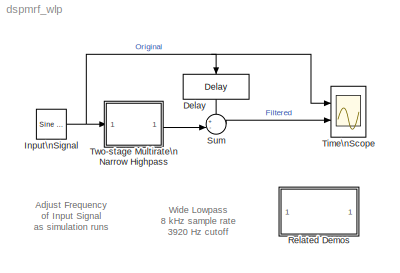
MODEL dspmrf_wlp
KIND model
CONFIG AbsTol = 1e-6
CONFIG FixedStep = auto
CONFIG MaxStep = auto
CONFIG MinStep = auto
CONFIG PreLoadFcn = load dspmrf_coeffs
CONFIG RelTol = 1e-3
CONFIG Solver = FixedStepDiscrete
CONFIG SolverMode = SingleTasking
CONFIG StartTime = 0.0
CONFIG StopTime = inf
BLOCK [Reference] Delay  REF=dspsigops/Delay
  Ports = [1, 1]
  SourceBlock = dspsigops/Delay
  SourceType = Delay
  delay = 6096
  dif_ic_for_ch = off
  dif_ic_for_dly = off
  dly_unit = Samples
  ic = 0
  ic_detail = on
  reset_popup = None
BLOCK [Reference] Input\nSignal  REF=dspsrcs4/Sine Wave
  Amplitude = 1
  CompMethod = Trigonometric fcn
  Frequency = 4000-80
  OutComplex = Real
  Phase = 0
  Ports = [0, 1]
  ResetState = Restart at time zero
  SampleMode = Discrete
  SampleTime = 1/8000
  SamplesPerFrame = 1
  SourceBlock = dspsrcs4/Sine Wave
  SourceType = Sine Wave
  TableSize = Speed
  additionalParams = off
  allowOverrides = on
  dataType = double
  fracBitsMode = Best precision
  numFracBits = 14
  udDataType = sfix(16)
  wordLen = 16
BLOCK [SubSystem] Related Demos
  MaskDisplay = disp('Other\\nMultirate Filter\\nDemos')
  MaskIconFrame = on
  MaskIconOpaque = on
  MaskIconRotate = none
  MaskIconUnits = autoscale
  OpenFcn = dspmrf_menu
  Ports = []
  TreatAsAtomicUnit = off
BLOCK [Sum] Sum
  IconShape = round
  Inputs = +-|
  Ports = [2, 1]
BLOCK [Scope] Time\nScope
  DataFormat = Structure
  NumInputPorts = 2
  Ports = [2]
  TimeRange = 1.5
  YMax = 2~1.5
  YMin = -2~-1.5
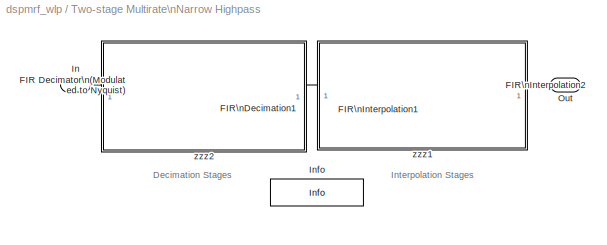
BLOCK [SubSystem] Two-stage Multirate\nNarrow Highpass
  Ports = [1, 1]
  TreatAsAtomicUnit = off
BLOCK [Reference] Two-stage Multirate\nNarrow Highpass/FIR Decimator\n(Modulated to Nyquist)  REF=dspmlti3/FIR\nDecimation
  D = 12
  Ports = [1, 1]
  SourceBlock = dspmlti3/FIR\nDecimation
  SourceType = FIR Decimation
  framing = Maintain input frame size
  h = mrf_firdn1 .* ((-1).^(0:684))
  outputBufInitCond = 0
BLOCK [Reference] Two-stage Multirate\nNarrow Highpass/FIR\nDecimation1  REF=dspmlti3/FIR\nDecimation
  D = 4
  Ports = [1, 1]
  SourceBlock = dspmlti3/FIR\nDecimation
  SourceType = FIR Decimation
  framing = Maintain input frame size
  h = mrf_firdn2
  outputBufInitCond = 0
BLOCK [Reference] Two-stage Multirate\nNarrow Highpass/FIR\nInterpolation1  REF=dspmlti3/FIR\nInterpolation
  L = 4
  Ports = [1, 1]
  SourceBlock = dspmlti3/FIR\nInterpolation
  SourceType = FIR Interpolation
  framing = Maintain input frame size
  h = mrf_upfir2
  outputBufInitCond = 0
BLOCK [Reference] Two-stage Multirate\nNarrow Highpass/FIR\nInterpolation2  REF=dspmlti3/FIR\nInterpolation
  L = 12
  Ports = [1, 1]
  SourceBlock = dspmlti3/FIR\nInterpolation
  SourceType = FIR Interpolation
  framing = Maintain input frame size
  h = mrf_upfir1 .* ((-1).^(0:684))
  outputBufInitCond = 0
BLOCK [Inport] Two-stage Multirate\nNarrow Highpass/In
BLOCK [Reference] Two-stage Multirate\nNarrow Highpass/Info  REF=dspmrf_lib/Info
  Ports = []
  SourceBlock = dspmrf_lib/Info
  SourceType = Unknown
BLOCK [Outport] Two-stage Multirate\nNarrow Highpass/Out
BLOCK [SubSystem] Two-stage Multirate\nNarrow Highpass/zzz1
  MaskDisplay = disp('')
  MaskIconFrame = on
  MaskIconOpaque = on
  MaskIconRotate = none
  MaskIconUnits = autoscale
  OpenFcn = dspmsmrff;
  Ports = []
  TreatAsAtomicUnit = off
BLOCK [SubSystem] Two-stage Multirate\nNarrow Highpass/zzz2
  MaskDisplay = disp('')
  MaskIconFrame = on
  MaskIconOpaque = on
  MaskIconRotate = none
  MaskIconUnits = autoscale
  OpenFcn = dspmsmrff;
  Ports = []
  TreatAsAtomicUnit = off
ANNOTATION (root): Adjust Frequency\nof Input Signal\nas simulation runs
ANNOTATION (root): Wide Lowpass\n8 kHz sample rate\n3920 Hz cutoff
ANNOTATION Two-stage Multirate\nNarrow Highpass: Decimation Stages
ANNOTATION Two-stage Multirate\nNarrow Highpass: Interpolation Stages
LINE Delay:1 -> Sum:1
NET Input\nSignal:1 -> Delay:1, Time\nScope:1, Two-stage Multirate\nNarrow Highpass:1
LINE Sum:1 -> Time\nScope:2
LINE Two-stage Multirate\nNarrow Highpass/FIR Decimator\n(Modulated to Nyquist):1 -> Two-stage Multirate\nNarrow Highpass/FIR\nDecimation1:1
LINE Two-stage Multirate\nNarrow Highpass/FIR\nDecimation1:1 -> Two-stage Multirate\nNarrow Highpass/FIR\nInterpolation1:1
LINE Two-stage Multirate\nNarrow Highpass/FIR\nInterpolation1:1 -> Two-stage Multirate\nNarrow Highpass/FIR\nInterpolation2:1
LINE Two-stage Multirate\nNarrow Highpass/FIR\nInterpolation2:1 -> Two-stage Multirate\nNarrow Highpass/Out:1
LINE Two-stage Multirate\nNarrow Highpass/In:1 -> Two-stage Multirate\nNarrow Highpass/FIR Decimator\n(Modulated to Nyquist):1
LINE Two-stage Multirate\nNarrow Highpass:1 -> Sum:2
note: NET lines group one-source signal fan-out (src -> all destinations, sorted); 1:1 wires keep LINE
